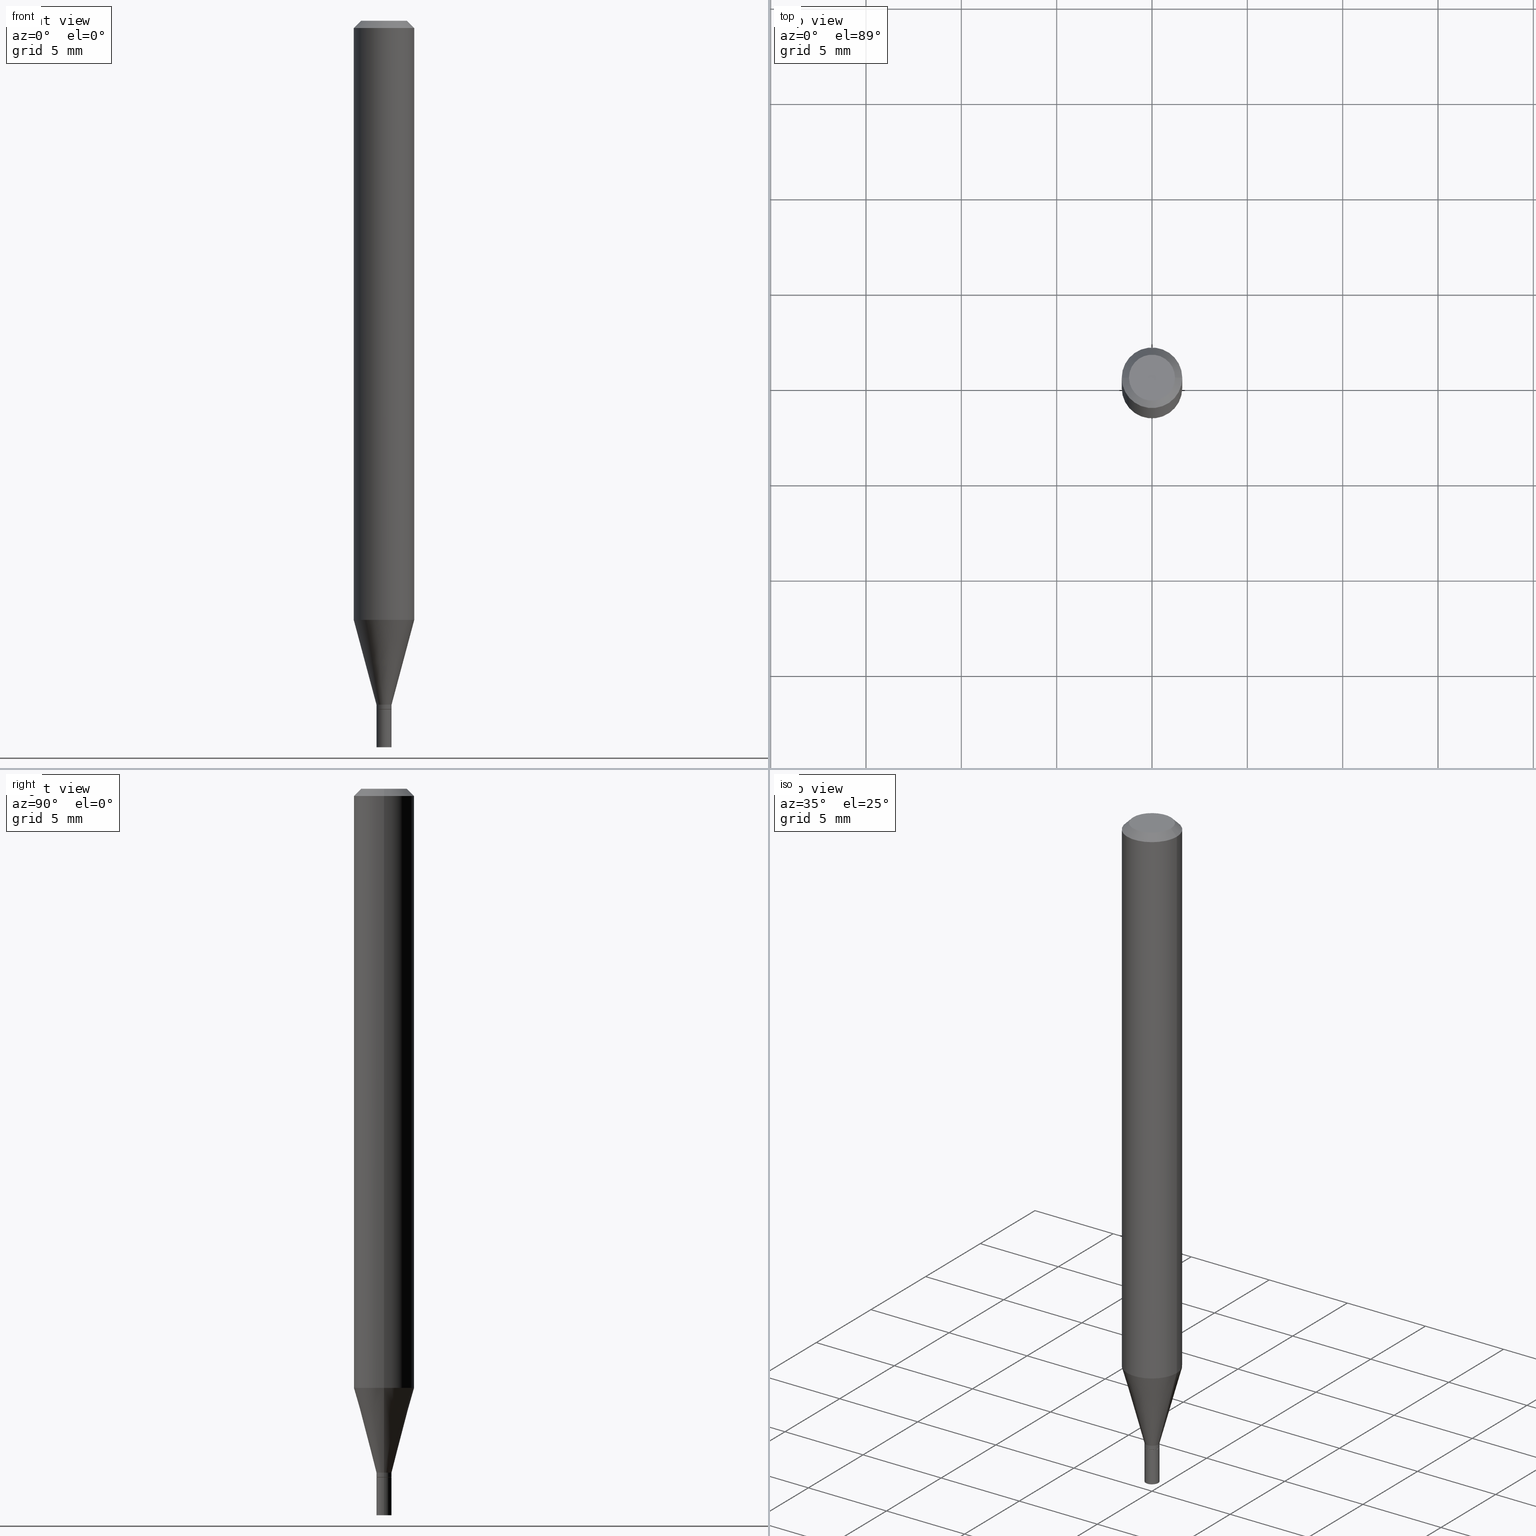
[diagram: canonical four-view strip — front | top / right | iso, engineering-drawing reading convention]
A machine part, canonical four-view strip (front | top / right | iso — engineering-drawing reading convention). The complete STEP part file that produces these views, byte-faithful:
ISO-10303-21;
HEADER;
FILE_DESCRIPTION (( 'STEP AP203' ),
    '1' );
FILE_NAME ('30812.STEP',
    '2024-03-13T16:22:15',
    ( '' ),
    ( '' ),
    'SwSTEP 2.0',
    'SolidWorks 2023',
    '' );
FILE_SCHEMA (( 'CONFIG_CONTROL_DESIGN' ));
ENDSEC;

DATA;
#1 = ORIENTED_EDGE ( 'NONE', *, *, #238, .T. ) ;
#2 = DIRECTION ( 'NONE',  ( 1.000000000000000000, 0.000000000000000000, 0.000000000000000000 ) ) ;
#3 = VECTOR ( 'NONE', #97, 39.37007874015748143 ) ;
#4 = CIRCLE ( 'NONE', #129, 0.06250000000000000000 ) ;
#5 = ORIENTED_EDGE ( 'NONE', *, *, #93, .F. ) ;
#6 = CARTESIAN_POINT ( 'NONE',  ( 3.316907271900976096E-16, 0.04749999999999999362, -2.357791577261395620E-17 ) ) ;
#7 = APPROVAL_STATUS ( 'not_yet_approved' ) ;
#8 = CARTESIAN_POINT ( 'NONE',  ( -0.01559999999999992816, -4.819126983667946462E-15, -1.412000000000000144 ) ) ;
#9 = CONICAL_SURFACE ( 'NONE', #56, 0.01559999999999992816, 0.2617993877991502405 ) ;
#10 = CONICAL_SURFACE ( 'NONE', #334, 0.06250000000000001388, 0.7853981633974395082 ) ;
#11 = FACE_OUTER_BOUND ( 'NONE', #323, .T. ) ;
#12 = DIRECTION ( 'NONE',  ( 1.000000000000000000, -6.982962677686252511E-15, 0.000000000000000000 ) ) ;
#13 = EDGE_CURVE ( 'NONE', #32, #143, #386, .T. ) ;
#14 = DIRECTION ( 'NONE',  ( 2.445468806185136597E-29, -3.491481338843145583E-15, -1.000000000000000000 ) ) ;
#15 = LINE ( 'NONE', #23, #383 ) ;
#16 = PERSON_AND_ORGANIZATION ( #141, #343 ) ;
#17 = CYLINDRICAL_SURFACE ( 'NONE', #153, 0.06250000000000001388 ) ;
#18 = AXIS2_PLACEMENT_3D ( 'NONE', #452, #55, #95 ) ;
#19 = CC_DESIGN_APPROVAL ( #340, ( #359 ) ) ;
#20 = EDGE_CURVE ( 'NONE', #464, #241, #170, .T. ) ;
#21 = DIRECTION ( 'NONE',  ( -1.000000000000000000, 6.982962677686267499E-15, 0.000000000000000000 ) ) ;
#22 = DESIGN_CONTEXT ( 'detailed design', #198, 'design' ) ;
#23 = CARTESIAN_POINT ( 'NONE',  ( -0.06250000000000001388, 3.840629472727445902E-16, -0.01499999999999999944 ) ) ;
#24 = DIRECTION ( 'NONE',  ( 1.000000000000000000, -6.982962677686250144E-15, 0.000000000000000000 ) ) ;
#25 = ADVANCED_FACE ( 'NONE', ( #360 ), #213, .T. ) ;
#26 = EDGE_CURVE ( 'NONE', #352, #32, #390, .T. ) ;
#27 = AXIS2_PLACEMENT_3D ( 'NONE', #336, #117, #186 ) ;
#28 = ORIENTED_EDGE ( 'NONE', *, *, #437, .F. ) ;
#29 = AXIS2_PLACEMENT_3D ( 'NONE', #137, #402, #183 ) ;
#30 = VERTEX_POINT ( 'NONE', #349 ) ;
#31 = DIRECTION ( 'NONE',  ( 0.7071067811865412445, -7.319954787623233957E-15, -0.7071067811865536790 ) ) ;
#32 = VERTEX_POINT ( 'NONE', #429 ) ;
#33 = ORIENTED_EDGE ( 'NONE', *, *, #93, .T. ) ;
#34 = CARTESIAN_POINT ( 'NONE',  ( 0.04749999999999999362, -4.035134999187574186E-16, 2.845348956448734443E-16 ) ) ;
#35 = FACE_OUTER_BOUND ( 'NONE', #244, .T. ) ;
#36 = ORIENTED_EDGE ( 'NONE', *, *, #165, .T. ) ;
#37 = AXIS2_PLACEMENT_3D ( 'NONE', #283, #200, #74 ) ;
#38 = CARTESIAN_POINT ( 'NONE',  ( 3.024963765565350895E-29, -4.318846558760209820E-15, -1.236966817125020102 ) ) ;
#39 = VERTEX_POINT ( 'NONE', #313 ) ;
#40 = ORIENTED_EDGE ( 'NONE', *, *, #453, .T. ) ;
#41 = PRODUCT ( '30812', '30812', '', ( #292 ) ) ;
#42 = DIRECTION ( 'NONE',  ( 0.000000000000000000, 0.000000000000000000, 1.000000000000000000 ) ) ;
#43 = ORIENTED_EDGE ( 'NONE', *, *, #96, .F. ) ;
#44 = CC_DESIGN_PERSON_AND_ORGANIZATION_ASSIGNMENT ( #161, #335, ( #243 ) ) ;
#45 = FACE_OUTER_BOUND ( 'NONE', #107, .T. ) ;
#46 = CIRCLE ( 'NONE', #163, 0.01559999999999992816 ) ;
#47 = ADVANCED_FACE ( 'NONE', ( #35 ), #423, .T. ) ;
#48 = LINE ( 'NONE', #254, #62 ) ;
#49 = COORDINATED_UNIVERSAL_TIME_OFFSET ( 5, 0, .BEHIND. ) ;
#50 = DIRECTION ( 'NONE',  ( -2.445468806185136877E-29, 3.491481338843145188E-15, 1.000000000000000000 ) ) ;
#51 = AXIS2_PLACEMENT_3D ( 'NONE', #221, #14, #21 ) ;
#52 = VECTOR ( 'NONE', #277, 39.37007874015748143 ) ;
#53 = DIRECTION ( 'NONE',  ( 0.7071067811865642261, -2.468850131082431399E-15, 0.7071067811865309194 ) ) ;
#54 = PERSON_AND_ORGANIZATION ( #141, #343 ) ;
#55 = DIRECTION ( 'NONE',  ( -2.445468806185136597E-29, 3.491481338843145583E-15, 1.000000000000000000 ) ) ;
#56 = AXIS2_PLACEMENT_3D ( 'NONE', #83, #215, #12 ) ;
#57 = CC_DESIGN_APPROVAL ( #218, ( #435 ) ) ;
#58 = VERTEX_POINT ( 'NONE', #204 ) ;
#59 = ADVANCED_BREP_SHAPE_REPRESENTATION ( '30812', ( #279, #278, #398 ), #118 ) ;
#60 = DIRECTION ( 'NONE',  ( -2.445468806185136597E-29, 3.491481338843145583E-15, 1.000000000000000000 ) ) ;
#61 = VECTOR ( 'NONE', #306, 39.37007874015748143 ) ;
#62 = VECTOR ( 'NONE', #151, 39.37007874015748143 ) ;
#63 = DIRECTION ( 'NONE',  ( -0.7071067811865642261, 7.493145998870414114E-15, 0.7071067811865309194 ) ) ;
#64 = VERTEX_POINT ( 'NONE', #136 ) ;
#65 = DIRECTION ( 'NONE',  ( -2.438088387897960049E-29, 3.491481338843145188E-15, 1.000000000000000000 ) ) ;
#66 = ORIENTED_EDGE ( 'NONE', *, *, #263, .F. ) ;
#67 = DIRECTION ( 'NONE',  ( 1.000000000000000000, -6.982962677686252511E-15, 0.000000000000000000 ) ) ;
#68 = ORIENTED_EDGE ( 'NONE', *, *, #320, .F. ) ;
#69 = CLOSED_SHELL ( 'NONE', ( #308, #76, #216, #407 ) ) ;
#70 = AXIS2_PLACEMENT_3D ( 'NONE', #344, #232, #302 ) ;
#71 = CARTESIAN_POINT ( 'NONE',  ( -0.01509999999999999884, -4.854945283561067019E-15, -1.421999999999999931 ) ) ;
#72 = AXIS2_PLACEMENT_3D ( 'NONE', #397, #353, #364 ) ;
#73 = DIMENSIONAL_EXPONENTS ( 1.000000000000000000, 0.000000000000000000, 0.000000000000000000, 0.000000000000000000, 0.000000000000000000, 0.000000000000000000, 0.000000000000000000 ) ;
#74 = DIRECTION ( 'NONE',  ( 1.000000000000000000, -6.982962677686255667E-15, 0.000000000000000000 ) ) ;
#75 = ORIENTED_EDGE ( 'NONE', *, *, #265, .T. ) ;
#76 = ADVANCED_FACE ( 'NONE', ( #208 ), #276, .F. ) ;
#77 = DIRECTION ( 'NONE',  ( -2.445468806185136597E-29, 3.491481338843145583E-15, 1.000000000000000000 ) ) ;
#78 = CARTESIAN_POINT ( 'NONE',  ( 3.024963765565350895E-29, -4.318846558760209820E-15, -1.236966817125020102 ) ) ;
#79 = DIRECTION ( 'NONE',  ( 1.000000000000000000, -6.982962677686267499E-15, 0.000000000000000000 ) ) ;
#80 = AXIS2_PLACEMENT_3D ( 'NONE', #176, #321, #270 ) ;
#81 = CC_DESIGN_SECURITY_CLASSIFICATION ( #435, ( #243 ) ) ;
#82 = DIRECTION ( 'NONE',  ( 1.000000000000000000, -6.982962677686283277E-15, 0.000000000000000000 ) ) ;
#83 = CARTESIAN_POINT ( 'NONE',  ( 3.453001954333413314E-29, -4.929971650446521716E-15, -1.412000000000000144 ) ) ;
#84 = ADVANCED_FACE ( 'NONE', ( #202 ), #351, .T. ) ;
#85 = FACE_OUTER_BOUND ( 'NONE', #462, .T. ) ;
#86 = PERSON_AND_ORGANIZATION_ROLE ( 'design_owner' ) ;
#87 = LINE ( 'NONE', #98, #434 ) ;
#88 = AXIS2_PLACEMENT_3D ( 'NONE', #172, #461, #458 ) ;
#89 = CARTESIAN_POINT ( 'NONE',  ( -0.06250000000000001388, 4.440892098500627148E-16, -3.074334431409316814E-30 ) ) ;
#90 = CARTESIAN_POINT ( 'NONE',  ( 0.01509999999999999884, -5.070329200268016125E-15, -1.421999999999999931 ) ) ;
#91 = CARTESIAN_POINT ( 'NONE',  ( 0.01559999999999992122, -5.072074940937436839E-15, -1.421500000000000208 ) ) ;
#92 = LINE ( 'NONE', #226, #61 ) ;
#93 = EDGE_CURVE ( 'NONE', #30, #352, #227, .T. ) ;
#94 = CIRCLE ( 'NONE', #317, 0.01509999999999999884 ) ;
#95 = DIRECTION ( 'NONE',  ( 1.000000000000000000, -6.982962677686265922E-15, 4.876176775795935232E-29 ) ) ;
#96 = EDGE_CURVE ( 'NONE', #104, #39, #420, .T. ) ;
#97 = DIRECTION ( 'NONE',  ( -2.445468806185136877E-29, 3.491481338843145188E-15, 1.000000000000000000 ) ) ;
#98 = CARTESIAN_POINT ( 'NONE',  ( 0.06250000000000001388, -4.364351673553917187E-16, 3.047610484872460221E-30 ) ) ;
#99 = CIRCLE ( 'NONE', #27, 0.04749999999999999362 ) ;
#100 = EDGE_LOOP ( 'NONE', ( #293, #175, #427, #436 ) ) ;
#101 = ORIENTED_EDGE ( 'NONE', *, *, #315, .T. ) ;
#102 = ORIENTED_EDGE ( 'NONE', *, *, #315, .F. ) ;
#103 = DIRECTION ( 'NONE',  ( 1.000000000000000000, -6.982962677686283277E-15, 0.000000000000000000 ) ) ;
#104 = VERTEX_POINT ( 'NONE', #225 ) ;
#105 = DIRECTION ( 'NONE',  ( -2.445468806185136597E-29, 3.491481338843145583E-15, 1.000000000000000000 ) ) ;
#106 = DIRECTION ( 'NONE',  ( 2.445468806185136597E-29, -3.491481338843145583E-15, -1.000000000000000000 ) ) ;
#107 = EDGE_LOOP ( 'NONE', ( #421, #75 ) ) ;
#108 = AXIS2_PLACEMENT_3D ( 'NONE', #231, #422, #195 ) ;
#109 = APPROVAL_PERSON_ORGANIZATION ( #418, #124, #414 ) ;
#110 = DIRECTION ( 'NONE',  ( 1.000000000000000000, -6.982962677686262766E-15, 0.000000000000000000 ) ) ;
#111 = EDGE_LOOP ( 'NONE', ( #451, #361, #394, #325 ) ) ;
#112 = APPLICATION_CONTEXT ( 'configuration controlled 3d designs of mechanical parts and assemblies' ) ;
#113 = ORIENTED_EDGE ( 'NONE', *, *, #169, .T. ) ;
#114 = DIRECTION ( 'NONE',  ( -2.445468806185136597E-29, 3.491481338843145583E-15, 1.000000000000000000 ) ) ;
#115 = DIRECTION ( 'NONE',  ( -2.438088387897960049E-29, 3.491481338843145188E-15, 1.000000000000000000 ) ) ;
#116 = FACE_OUTER_BOUND ( 'NONE', #399, .T. ) ;
#117 = DIRECTION ( 'NONE',  ( -2.445468806185136597E-29, 3.491481338843145583E-15, 1.000000000000000000 ) ) ;
#118 =( GEOMETRIC_REPRESENTATION_CONTEXT ( 3 ) GLOBAL_UNCERTAINTY_ASSIGNED_CONTEXT ( ( #403 ) ) GLOBAL_UNIT_ASSIGNED_CONTEXT ( ( #392, #285, #362 ) ) REPRESENTATION_CONTEXT ( 'NONE', 'WORKASPACE' ) );
#119 = EDGE_CURVE ( 'NONE', #464, #209, #455, .T. ) ;
#120 = CYLINDRICAL_SURFACE ( 'NONE', #29, 0.01559999999999992643 ) ;
#121 = PERSON_AND_ORGANIZATION ( #141, #343 ) ;
#122 = CARTESIAN_POINT ( 'NONE',  ( 3.477456642395264859E-29, -4.964886463834953365E-15, -1.421999999999999931 ) ) ;
#123 = ADVANCED_FACE ( 'NONE', ( #223 ), #454, .T. ) ;
#124 = APPROVAL ( #378, 'UNSPECIFIED' ) ;
#125 = DATE_AND_TIME ( #447, #234 ) ;
#126 = DIRECTION ( 'NONE',  ( -2.445468806185136597E-29, 3.491481338843145583E-15, 1.000000000000000000 ) ) ;
#127 = VERTEX_POINT ( 'NONE', #274 ) ;
#128 = ADVANCED_FACE ( 'NONE', ( #338 ), #354, .T. ) ;
#129 = AXIS2_PLACEMENT_3D ( 'NONE', #38, #256, #110 ) ;
#130 = ORIENTED_EDGE ( 'NONE', *, *, #119, .T. ) ;
#131 = CARTESIAN_POINT ( 'NONE',  ( 3.453001954333413314E-29, -4.929971650446521716E-15, -1.412000000000000144 ) ) ;
#132 = DIRECTION ( 'NONE',  ( 1.000000000000000000, -6.982962677686250144E-15, 0.000000000000000000 ) ) ;
#133 = VECTOR ( 'NONE', #443, 39.37007874015748143 ) ;
#134 = ORIENTED_EDGE ( 'NONE', *, *, #357, .F. ) ;
#135 = FACE_OUTER_BOUND ( 'NONE', #430, .T. ) ;
#136 = CARTESIAN_POINT ( 'NONE',  ( -0.01559999999999999928, -4.990209569271260911E-15, -1.500000000000000222 ) ) ;
#137 = CARTESIAN_POINT ( 'NONE',  ( 0.000000000000000000, 0.000000000000000000, 0.000000000000000000 ) ) ;
#138 = ORIENTED_EDGE ( 'NONE', *, *, #158, .T. ) ;
#139 = VERTEX_POINT ( 'NONE', #448 ) ;
#140 = ORIENTED_EDGE ( 'NONE', *, *, #337, .T. ) ;
#141 = PERSON ( 'UNSPECIFIED', 'UNSPECIFIED', 'UNSPECIFIED', ('UNSPECIFIED'), ('UNSPECIFIED'), ('UNSPECIFIED') ) ;
#142 = ORIENTED_EDGE ( 'NONE', *, *, #197, .F. ) ;
#143 = VERTEX_POINT ( 'NONE', #91 ) ;
#144 = CARTESIAN_POINT ( 'NONE',  ( 0.000000000000000000, 0.000000000000000000, 0.000000000000000000 ) ) ;
#145 = ORIENTED_EDGE ( 'NONE', *, *, #158, .F. ) ;
#146 = AXIS2_PLACEMENT_3D ( 'NONE', #367, #409, #82 ) ;
#147 = LOCAL_TIME ( 12, 22, 15.00000000000000000, #159 ) ;
#148 = APPLICATION_PROTOCOL_DEFINITION ( 'international standard', 'config_control_design', 1994, #112 ) ;
#149 = ORIENTED_EDGE ( 'NONE', *, *, #439, .T. ) ;
#150 = DIRECTION ( 'NONE',  ( 1.000000000000000000, -6.982962677686250144E-15, 0.000000000000000000 ) ) ;
#151 = DIRECTION ( 'NONE',  ( -2.445468806185136877E-29, 3.491481338843145188E-15, 1.000000000000000000 ) ) ;
#152 = DATE_AND_TIME ( #368, #147 ) ;
#153 = AXIS2_PLACEMENT_3D ( 'NONE', #162, #126, #224 ) ;
#154 = LINE ( 'NONE', #8, #133 ) ;
#155 = AXIS2_PLACEMENT_3D ( 'NONE', #6, #211, #294 ) ;
#156 = APPROVAL_ROLE ( '' ) ;
#157 = LINE ( 'NONE', #446, #365 ) ;
#158 = EDGE_CURVE ( 'NONE', #143, #104, #92, .T. ) ;
#159 = COORDINATED_UNIVERSAL_TIME_OFFSET ( 5, 0, .BEHIND. ) ;
#160 = CARTESIAN_POINT ( 'NONE',  ( 3.668203209277704895E-29, -5.237222008264718177E-15, -1.500000000000000222 ) ) ;
#161 = PERSON_AND_ORGANIZATION ( #141, #343 ) ;
#162 = CARTESIAN_POINT ( 'NONE',  ( 0.000000000000000000, 0.000000000000000000, 0.000000000000000000 ) ) ;
#163 = AXIS2_PLACEMENT_3D ( 'NONE', #261, #297, #380 ) ;
#164 = CIRCLE ( 'NONE', #272, 0.01559999999999999928 ) ;
#165 = EDGE_CURVE ( 'NONE', #352, #30, #94, .T. ) ;
#166 = VECTOR ( 'NONE', #275, 39.37007874015748143 ) ;
#167 = AXIS2_PLACEMENT_3D ( 'NONE', #431, #441, #324 ) ;
#168 = ORIENTED_EDGE ( 'NONE', *, *, #238, .F. ) ;
#169 = EDGE_CURVE ( 'NONE', #319, #64, #309, .T. ) ;
#170 = LINE ( 'NONE', #457, #425 ) ;
#171 = ORIENTED_EDGE ( 'NONE', *, *, #320, .T. ) ;
#172 = CARTESIAN_POINT ( 'NONE',  ( 0.000000000000000000, 0.000000000000000000, 0.000000000000000000 ) ) ;
#173 = CLOSED_SHELL ( 'NONE', ( #123, #25, #310, #84, #47, #248, #179, #128, #376, #255, #405, #339 ) ) ;
#174 = DIRECTION ( 'NONE',  ( -2.445468806185136597E-29, 3.491481338843145583E-15, 1.000000000000000000 ) ) ;
#175 = ORIENTED_EDGE ( 'NONE', *, *, #303, .T. ) ;
#176 = CARTESIAN_POINT ( 'NONE',  ( 3.477456642395264859E-29, -4.964886463834953365E-15, -1.421999999999999931 ) ) ;
#177 = ORIENTED_EDGE ( 'NONE', *, *, #395, .F. ) ;
#178 = CARTESIAN_POINT ( 'NONE',  ( 3.477456642395264859E-29, -4.964886463834953365E-15, -1.421999999999999931 ) ) ;
#179 = ADVANCED_FACE ( 'NONE', ( #342 ), #17, .T. ) ;
#180 = EDGE_LOOP ( 'NONE', ( #236, #177 ) ) ;
#181 = ORIENTED_EDGE ( 'NONE', *, *, #20, .F. ) ;
#182 = LOCAL_TIME ( 12, 22, 15.00000000000000000, #369 ) ;
#183 = DIRECTION ( 'NONE',  ( 1.000000000000000000, -6.982962677686265922E-15, 4.876176775795935232E-29 ) ) ;
#184 = DIRECTION ( 'NONE',  ( 1.000000000000000000, -6.982962677686262766E-15, 0.000000000000000000 ) ) ;
#185 = APPROVAL_DATE_TIME ( #222, #340 ) ;
#186 = DIRECTION ( 'NONE',  ( 1.000000000000000000, -6.982962677686267499E-15, 4.852736867747366768E-29 ) ) ;
#187 = PERSON_AND_ORGANIZATION ( #141, #343 ) ;
#188 = AXIS2_PLACEMENT_3D ( 'NONE', #388, #65, #355 ) ;
#189 = APPROVAL_PERSON_ORGANIZATION ( #16, #340, #372 ) ;
#190 = CC_DESIGN_PERSON_AND_ORGANIZATION_ASSIGNMENT ( #54, #194, ( #359 ) ) ;
#191 = LINE ( 'NONE', #90, #366 ) ;
#192 = APPLICATION_PROTOCOL_DEFINITION ( 'international standard', 'config_control_design', 1994, #198 ) ;
#193 = DIRECTION ( 'NONE',  ( -2.445468806185136877E-29, 3.491481338843145188E-15, 1.000000000000000000 ) ) ;
#194 = PERSON_AND_ORGANIZATION_ROLE ( 'creator' ) ;
#195 = DIRECTION ( 'NONE',  ( 1.000000000000000000, -6.982962677686267499E-15, 4.852736867747366768E-29 ) ) ;
#196 = AXIS2_PLACEMENT_3D ( 'NONE', #300, #410, #370 ) ;
#197 = EDGE_CURVE ( 'NONE', #319, #205, #381, .T. ) ;
#198 = APPLICATION_CONTEXT ( 'configuration controlled 3d designs of mechanical parts and assemblies' ) ;
#199 = ORIENTED_EDGE ( 'NONE', *, *, #13, .F. ) ;
#200 = DIRECTION ( 'NONE',  ( -2.445468806185136597E-29, 3.491481338843145583E-15, 1.000000000000000000 ) ) ;
#201 = VERTEX_POINT ( 'NONE', #230 ) ;
#202 = FACE_OUTER_BOUND ( 'NONE', #350, .T. ) ;
#203 = ORIENTED_EDGE ( 'NONE', *, *, #263, .T. ) ;
#204 = CARTESIAN_POINT ( 'NONE',  ( -0.06250000000000002776, -1.741520179571366031E-15, -0.01499999999999999944 ) ) ;
#205 = VERTEX_POINT ( 'NONE', #385 ) ;
#206 = CIRCLE ( 'NONE', #298, 0.01559999999999992816 ) ;
#207 = FACE_OUTER_BOUND ( 'NONE', #291, .T. ) ;
#208 = FACE_OUTER_BOUND ( 'NONE', #180, .T. ) ;
#209 = VERTEX_POINT ( 'NONE', #466 ) ;
#210 = ORIENTED_EDGE ( 'NONE', *, *, #26, .T. ) ;
#211 = DIRECTION ( 'NONE',  ( 2.438088387897960049E-29, -3.491481338843145188E-15, -1.000000000000000000 ) ) ;
#212 = LINE ( 'NONE', #89, #52 ) ;
#213 = CONICAL_SURFACE ( 'NONE', #444, 0.01509999999999999884, 0.7853981633974718157 ) ;
#214 = APPROVAL_STATUS ( 'not_yet_approved' ) ;
#215 = DIRECTION ( 'NONE',  ( -2.445468806185136597E-29, 3.491481338843145583E-15, 1.000000000000000000 ) ) ;
#216 = ADVANCED_FACE ( 'NONE', ( #289 ), #412, .T. ) ;
#217 = PERSON_AND_ORGANIZATION_ROLE ( 'design_supplier' ) ;
#218 = APPROVAL ( #7, 'UNSPECIFIED' ) ;
#219 = DATE_TIME_ROLE ( 'creation_date' ) ;
#220 = APPROVAL_PERSON_ORGANIZATION ( #268, #218, #156 ) ;
#221 = CARTESIAN_POINT ( 'NONE',  ( 3.668203209277705088E-31, -5.237222008264718399E-17, -0.01499999999999999944 ) ) ;
#222 = DATE_AND_TIME ( #259, #456 ) ;
#223 = FACE_OUTER_BOUND ( 'NONE', #322, .T. ) ;
#224 = DIRECTION ( 'NONE',  ( 1.000000000000000000, -6.982962677686265922E-15, 4.876176775795935232E-29 ) ) ;
#225 = CARTESIAN_POINT ( 'NONE',  ( 0.01559999999999992816, -5.038905868218426694E-15, -1.412000000000000144 ) ) ;
#226 = CARTESIAN_POINT ( 'NONE',  ( 0.01559999999999992643, -1.089342177719052370E-16, 7.606835770241623291E-31 ) ) ;
#227 = CIRCLE ( 'NONE', #80, 0.01509999999999999884 ) ;
#228 = ORIENTED_EDGE ( 'NONE', *, *, #332, .F. ) ;
#229 = EDGE_CURVE ( 'NONE', #39, #241, #87, .T. ) ;
#230 = CARTESIAN_POINT ( 'NONE',  ( -0.06250000000000000000, -3.874757348910146415E-15, -1.236966817125020102 ) ) ;
#231 = CARTESIAN_POINT ( 'NONE',  ( -6.958212115706747638E-45, 9.934482783937485755E-31, 2.845348956448708805E-16 ) ) ;
#232 = DIRECTION ( 'NONE',  ( -2.445468806185136597E-29, 3.491481338843145583E-15, 1.000000000000000000 ) ) ;
#233 = CIRCLE ( 'NONE', #70, 0.01559999999999992122 ) ;
#234 = LOCAL_TIME ( 12, 22, 15.00000000000000000, #442 ) ;
#235 = CARTESIAN_POINT ( 'NONE',  ( 3.477456642395264859E-29, -4.964886463834953365E-15, -1.421999999999999931 ) ) ;
#236 = ORIENTED_EDGE ( 'NONE', *, *, #169, .F. ) ;
#237 = LENGTH_MEASURE_WITH_UNIT ( LENGTH_MEASURE( 0.02539999999999999897 ), #245 );
#238 = EDGE_CURVE ( 'NONE', #209, #464, #99, .T. ) ;
#239 = ORIENTED_EDGE ( 'NONE', *, *, #411, .F. ) ;
#240 = ORIENTED_EDGE ( 'NONE', *, *, #249, .T. ) ;
#241 = VERTEX_POINT ( 'NONE', #296 ) ;
#242 = DIRECTION ( 'NONE',  ( -1.000000000000000000, 6.982962677686267499E-15, 0.000000000000000000 ) ) ;
#243 = PRODUCT_DEFINITION_FORMATION_WITH_SPECIFIED_SOURCE ( 'ANY', '', #41, .NOT_KNOWN. ) ;
#244 = EDGE_LOOP ( 'NONE', ( #389, #363, #28, #43 ) ) ;
#245 =( LENGTH_UNIT ( ) NAMED_UNIT ( * ) SI_UNIT ( $, .METRE. ) );
#246 = EDGE_CURVE ( 'NONE', #127, #201, #154, .T. ) ;
#247 = ORIENTED_EDGE ( 'NONE', *, *, #246, .F. ) ;
#248 = ADVANCED_FACE ( 'NONE', ( #413 ), #9, .T. ) ;
#249 = EDGE_CURVE ( 'NONE', #64, #139, #157, .T. ) ;
#250 = PERSON_AND_ORGANIZATION ( #141, #343 ) ;
#251 = CC_DESIGN_DATE_AND_TIME_ASSIGNMENT ( #305, #331, ( #435 ) ) ;
#252 = EDGE_LOOP ( 'NONE', ( #5, #391 ) ) ;
#253 = DIRECTION ( 'NONE',  ( 1.000000000000000000, -6.982962677686265922E-15, 4.876176775795935793E-29 ) ) ;
#254 = CARTESIAN_POINT ( 'NONE',  ( -0.01559999999999992643, 1.108446667785751062E-16, -7.673538740797616580E-31 ) ) ;
#255 = ADVANCED_FACE ( 'NONE', ( #371 ), #301, .F. ) ;
#256 = DIRECTION ( 'NONE',  ( -2.445468806185136597E-29, 3.491481338843145583E-15, 1.000000000000000000 ) ) ;
#257 = CYLINDRICAL_SURFACE ( 'NONE', #449, 0.01559999999999999928 ) ;
#258 = AXIS2_PLACEMENT_3D ( 'NONE', #160, #269, #379 ) ;
#259 = CALENDAR_DATE ( 2024, 13, 3 ) ;
#260 = CARTESIAN_POINT ( 'NONE',  ( 3.668203209277705088E-31, -5.237222008264718399E-17, -0.01499999999999999944 ) ) ;
#261 = CARTESIAN_POINT ( 'NONE',  ( 3.453001954333413314E-29, -4.929971650446521716E-15, -1.412000000000000144 ) ) ;
#262 = DIRECTION ( 'NONE',  ( 1.000000000000000000, -6.982962677686266711E-15, 4.876176775795935793E-29 ) ) ;
#263 = EDGE_CURVE ( 'NONE', #127, #104, #46, .T. ) ;
#264 = CARTESIAN_POINT ( 'NONE',  ( 0.000000000000000000, 0.000000000000000000, 0.000000000000000000 ) ) ;
#265 = EDGE_CURVE ( 'NONE', #139, #205, #408, .T. ) ;
#266 = CIRCLE ( 'NONE', #328, 0.06250000000000000000 ) ;
#267 = COORDINATED_UNIVERSAL_TIME_OFFSET ( 5, 0, .BEHIND. ) ;
#268 = PERSON_AND_ORGANIZATION ( #141, #343 ) ;
#269 = DIRECTION ( 'NONE',  ( -2.445468806185136597E-29, 3.491481338843145583E-15, 1.000000000000000000 ) ) ;
#270 = DIRECTION ( 'NONE',  ( 1.000000000000000000, -6.982962677686250144E-15, 0.000000000000000000 ) ) ;
#271 = AXIS2_PLACEMENT_3D ( 'NONE', #282, #174, #460 ) ;
#272 = AXIS2_PLACEMENT_3D ( 'NONE', #316, #288, #103 ) ;
#273 = CC_DESIGN_PERSON_AND_ORGANIZATION_ASSIGNMENT ( #250, #86, ( #41 ) ) ;
#274 = CARTESIAN_POINT ( 'NONE',  ( -0.01559999999999992816, -4.346942166289046833E-15, -1.412000000000000144 ) ) ;
#275 = DIRECTION ( 'NONE',  ( 0.2588190451025215166, 1.565188264969620784E-15, 0.9659258262890679791 ) ) ;
#276 = PLANE ( 'NONE',  #188 ) ;
#277 = DIRECTION ( 'NONE',  ( -2.445468806185136877E-29, 3.491481338843145188E-15, 1.000000000000000000 ) ) ;
#278 = MANIFOLD_SOLID_BREP ( 'Body-Move/Copy2[2]', #173 ) ;
#279 = MANIFOLD_SOLID_BREP ( 'Body-Move/Copy2[1]', #69 ) ;
#280 = CONICAL_SURFACE ( 'NONE', #426, 0.01509999999999999884, 0.7853981633974718157 ) ;
#281 = ORIENTED_EDGE ( 'NONE', *, *, #96, .T. ) ;
#282 = CARTESIAN_POINT ( 'NONE',  ( 3.668203209277705088E-31, -5.237222008264718399E-17, -0.01499999999999999944 ) ) ;
#283 = CARTESIAN_POINT ( 'NONE',  ( 3.476233907992172058E-29, -4.963140723165531861E-15, -1.421500000000000208 ) ) ;
#284 = ORIENTED_EDGE ( 'NONE', *, *, #312, .T. ) ;
#285 =( NAMED_UNIT ( * ) PLANE_ANGLE_UNIT ( ) SI_UNIT ( $, .RADIAN. ) );
#286 = DIRECTION ( 'NONE',  ( -2.445468806185136597E-29, 3.491481338843145583E-15, 1.000000000000000000 ) ) ;
#287 = ORIENTED_EDGE ( 'NONE', *, *, #303, .F. ) ;
#288 = DIRECTION ( 'NONE',  ( -2.445468806185136597E-29, 3.491481338843145583E-15, 1.000000000000000000 ) ) ;
#289 = FACE_OUTER_BOUND ( 'NONE', #111, .T. ) ;
#290 = CIRCLE ( 'NONE', #271, 0.06250000000000001388 ) ;
#291 = EDGE_LOOP ( 'NONE', ( #438, #36, #400, #199 ) ) ;
#292 = MECHANICAL_CONTEXT ( 'NONE', #112, 'mechanical' ) ;
#293 = ORIENTED_EDGE ( 'NONE', *, *, #337, .F. ) ;
#294 = DIRECTION ( 'NONE',  ( -1.000000000000000000, 6.982962677686265922E-15, -4.876176775795935793E-29 ) ) ;
#295 = SHAPE_DEFINITION_REPRESENTATION ( #404, #59 ) ;
#296 = CARTESIAN_POINT ( 'NONE',  ( 0.06250000000000001388, -4.888073874380389458E-16, -0.01499999999999999944 ) ) ;
#297 = DIRECTION ( 'NONE',  ( -2.445468806185136597E-29, 3.491481338843145583E-15, 1.000000000000000000 ) ) ;
#298 = AXIS2_PLACEMENT_3D ( 'NONE', #327, #114, #465 ) ;
#299 = APPROVAL_DATE_TIME ( #125, #218 ) ;
#300 = CARTESIAN_POINT ( 'NONE',  ( 0.000000000000000000, 0.000000000000000000, 0.000000000000000000 ) ) ;
#301 = PLANE ( 'NONE',  #347 ) ;
#302 = DIRECTION ( 'NONE',  ( 1.000000000000000000, -6.982962677686255667E-15, 0.000000000000000000 ) ) ;
#303 = EDGE_CURVE ( 'NONE', #201, #39, #266, .T. ) ;
#304 = VECTOR ( 'NONE', #63, 39.37007874015748143 ) ;
#305 = DATE_AND_TIME ( #333, #182 ) ;
#306 = DIRECTION ( 'NONE',  ( -2.445468806185136877E-29, 3.491481338843145188E-15, 1.000000000000000000 ) ) ;
#307 = EDGE_LOOP ( 'NONE', ( #33, #210, #382, #228 ) ) ;
#308 = ADVANCED_FACE ( 'NONE', ( #11 ), #257, .T. ) ;
#309 = CIRCLE ( 'NONE', #258, 0.01559999999999999928 ) ;
#310 = ADVANCED_FACE ( 'NONE', ( #85 ), #10, .T. ) ;
#311 = CIRCLE ( 'NONE', #72, 0.01559999999999999928 ) ;
#312 = EDGE_CURVE ( 'NONE', #143, #32, #233, .T. ) ;
#313 = CARTESIAN_POINT ( 'NONE',  ( 0.06250000000000000000, -4.755281726115601490E-15, -1.236966817125020102 ) ) ;
#314 = ORIENTED_EDGE ( 'NONE', *, *, #437, .T. ) ;
#315 = EDGE_CURVE ( 'NONE', #209, #58, #15, .T. ) ;
#316 = CARTESIAN_POINT ( 'NONE',  ( 3.477456642395264859E-29, -4.964886463834953365E-15, -1.421999999999999931 ) ) ;
#317 = AXIS2_PLACEMENT_3D ( 'NONE', #384, #60, #24 ) ;
#318 = AXIS2_PLACEMENT_3D ( 'NONE', #406, #77, #79 ) ;
#319 = VERTEX_POINT ( 'NONE', #440 ) ;
#320 = EDGE_CURVE ( 'NONE', #32, #127, #48, .T. ) ;
#321 = DIRECTION ( 'NONE',  ( -2.445468806185136597E-29, 3.491481338843145583E-15, 1.000000000000000000 ) ) ;
#322 = EDGE_LOOP ( 'NONE', ( #284, #171, #239, #145 ) ) ;
#323 = EDGE_LOOP ( 'NONE', ( #113, #240, #134, #142 ) ) ;
#324 = DIRECTION ( 'NONE',  ( -1.000000000000000000, 6.982962677686265922E-15, -4.876176775795935793E-29 ) ) ;
#325 = ORIENTED_EDGE ( 'NONE', *, *, #265, .F. ) ;
#326 = PRODUCT_RELATED_PRODUCT_CATEGORY ( 'detail', '', ( #41 ) ) ;
#327 = CARTESIAN_POINT ( 'NONE',  ( 3.453001954333413314E-29, -4.929971650446521716E-15, -1.412000000000000144 ) ) ;
#328 = AXIS2_PLACEMENT_3D ( 'NONE', #78, #415, #184 ) ;
#329 = LOCAL_TIME ( 12, 22, 15.00000000000000000, #49 ) ;
#330 = PLANE ( 'NONE',  #167 ) ;
#331 = DATE_TIME_ROLE ( 'classification_date' ) ;
#332 = EDGE_CURVE ( 'NONE', #30, #143, #191, .T. ) ;
#333 = CALENDAR_DATE ( 2024, 13, 3 ) ;
#334 = AXIS2_PLACEMENT_3D ( 'NONE', #260, #106, #242 ) ;
#335 = PERSON_AND_ORGANIZATION_ROLE ( 'creator' ) ;
#336 = CARTESIAN_POINT ( 'NONE',  ( -6.958212115706747638E-45, 9.934482783937485755E-31, 2.845348956448708805E-16 ) ) ;
#337 = EDGE_CURVE ( 'NONE', #201, #58, #212, .T. ) ;
#338 = FACE_OUTER_BOUND ( 'NONE', #428, .T. ) ;
#339 = ADVANCED_FACE ( 'NONE', ( #116 ), #120, .T. ) ;
#340 = APPROVAL ( #214, 'UNSPECIFIED' ) ;
#341 = DATE_AND_TIME ( #375, #329 ) ;
#342 = FACE_OUTER_BOUND ( 'NONE', #100, .T. ) ;
#343 = ORGANIZATION ( 'UNSPECIFIED', 'UNSPECIFIED', '' ) ;
#344 = CARTESIAN_POINT ( 'NONE',  ( 3.476233907992172058E-29, -4.963140723165531861E-15, -1.421500000000000208 ) ) ;
#345 = DIRECTION ( 'NONE',  ( -0.7071067811865412445, 2.468850131082191585E-15, -0.7071067811865536790 ) ) ;
#346 = CARTESIAN_POINT ( 'NONE',  ( 0.01559999999999992816, -5.038905868218426694E-15, -1.412000000000000144 ) ) ;
#347 = AXIS2_PLACEMENT_3D ( 'NONE', #122, #115, #253 ) ;
#348 = CARTESIAN_POINT ( 'NONE',  ( 0.01559999999999999928, -1.089342177719057547E-16, 7.606835770241659199E-31 ) ) ;
#349 = CARTESIAN_POINT ( 'NONE',  ( 0.01509999999999999884, -5.070329200268016125E-15, -1.421999999999999931 ) ) ;
#350 = EDGE_LOOP ( 'NONE', ( #314, #140, #432, #401 ) ) ;
#351 = CYLINDRICAL_SURFACE ( 'NONE', #88, 0.06250000000000001388 ) ;
#352 = VERTEX_POINT ( 'NONE', #71 ) ;
#353 = DIRECTION ( 'NONE',  ( -2.445468806185136597E-29, 3.491481338843145583E-15, 1.000000000000000000 ) ) ;
#354 = CONICAL_SURFACE ( 'NONE', #51, 0.06250000000000001388, 0.7853981633974395082 ) ;
#355 = DIRECTION ( 'NONE',  ( 1.000000000000000000, -6.982962677686265922E-15, 4.876176775795935793E-29 ) ) ;
#356 = ORIENTED_EDGE ( 'NONE', *, *, #20, .T. ) ;
#357 = EDGE_CURVE ( 'NONE', #205, #139, #164, .T. ) ;
#358 = DIRECTION ( 'NONE',  ( -2.445468806185136597E-29, 3.491481338843145583E-15, 1.000000000000000000 ) ) ;
#359 = PRODUCT_DEFINITION ( 'UNKNOWN', '', #243, #22 ) ;
#360 = FACE_OUTER_BOUND ( 'NONE', #307, .T. ) ;
#361 = ORIENTED_EDGE ( 'NONE', *, *, #395, .T. ) ;
#362 =( NAMED_UNIT ( * ) SI_UNIT ( $, .STERADIAN. ) SOLID_ANGLE_UNIT ( ) );
#363 = ORIENTED_EDGE ( 'NONE', *, *, #246, .T. ) ;
#364 = DIRECTION ( 'NONE',  ( 1.000000000000000000, -6.982962677686283277E-15, 0.000000000000000000 ) ) ;
#365 = VECTOR ( 'NONE', #50, 39.37007874015748143 ) ;
#366 = VECTOR ( 'NONE', #53, 39.37007874015748143 ) ;
#367 = CARTESIAN_POINT ( 'NONE',  ( 3.477456642395264859E-29, -4.964886463834953365E-15, -1.421999999999999931 ) ) ;
#368 = CALENDAR_DATE ( 2024, 13, 3 ) ;
#369 = COORDINATED_UNIVERSAL_TIME_OFFSET ( 5, 0, .BEHIND. ) ;
#370 = DIRECTION ( 'NONE',  ( 1.000000000000000000, -6.982962677686266711E-15, 4.876176775795935793E-29 ) ) ;
#371 = FACE_OUTER_BOUND ( 'NONE', #252, .T. ) ;
#372 = APPROVAL_ROLE ( '' ) ;
#373 = DIRECTION ( 'NONE',  ( -2.445468806185136597E-29, 3.491481338843145583E-15, 1.000000000000000000 ) ) ;
#374 = CC_DESIGN_APPROVAL ( #124, ( #243 ) ) ;
#375 = CALENDAR_DATE ( 2024, 13, 3 ) ;
#376 = ADVANCED_FACE ( 'NONE', ( #135 ), #433, .F. ) ;
#377 = CC_DESIGN_PERSON_AND_ORGANIZATION_ASSIGNMENT ( #187, #217, ( #243 ) ) ;
#378 = APPROVAL_STATUS ( 'not_yet_approved' ) ;
#379 = DIRECTION ( 'NONE',  ( 1.000000000000000000, -6.982962677686283277E-15, 0.000000000000000000 ) ) ;
#380 = DIRECTION ( 'NONE',  ( 1.000000000000000000, -6.982962677686252511E-15, 0.000000000000000000 ) ) ;
#381 = LINE ( 'NONE', #348, #3 ) ;
#382 = ORIENTED_EDGE ( 'NONE', *, *, #312, .F. ) ;
#383 = VECTOR ( 'NONE', #345, 39.37007874015748854 ) ;
#384 = CARTESIAN_POINT ( 'NONE',  ( 3.477456642395264859E-29, -4.964886463834953365E-15, -1.421999999999999931 ) ) ;
#385 = CARTESIAN_POINT ( 'NONE',  ( 0.01559999999999999928, -5.073820681606859921E-15, -1.421999999999999931 ) ) ;
#386 = CIRCLE ( 'NONE', #37, 0.01559999999999992122 ) ;
#387 = CIRCLE ( 'NONE', #318, 0.06250000000000001388 ) ;
#388 = CARTESIAN_POINT ( 'NONE',  ( 3.576687321579069994E-29, -5.368277968210015545E-15, -1.500000000000000222 ) ) ;
#389 = ORIENTED_EDGE ( 'NONE', *, *, #411, .T. ) ;
#390 = LINE ( 'NONE', #393, #304 ) ;
#391 = ORIENTED_EDGE ( 'NONE', *, *, #165, .F. ) ;
#392 =( CONVERSION_BASED_UNIT ( 'INCH', #237 ) LENGTH_UNIT ( ) NAMED_UNIT ( #73 ) );
#393 = CARTESIAN_POINT ( 'NONE',  ( -0.01509999999999999884, -4.857594510735178220E-15, -1.421999999999999931 ) ) ;
#394 = ORIENTED_EDGE ( 'NONE', *, *, #197, .T. ) ;
#395 = EDGE_CURVE ( 'NONE', #64, #319, #311, .T. ) ;
#396 = CC_DESIGN_PERSON_AND_ORGANIZATION_ASSIGNMENT ( #121, #419, ( #435 ) ) ;
#397 = CARTESIAN_POINT ( 'NONE',  ( 3.668203209277704895E-29, -5.237222008264718177E-15, -1.500000000000000222 ) ) ;
#398 = AXIS2_PLACEMENT_3D ( 'NONE', #144, #42, #2 ) ;
#399 = EDGE_LOOP ( 'NONE', ( #68, #463, #138, #66 ) ) ;
#400 = ORIENTED_EDGE ( 'NONE', *, *, #332, .T. ) ;
#401 = ORIENTED_EDGE ( 'NONE', *, *, #229, .F. ) ;
#402 = DIRECTION ( 'NONE',  ( -2.445468806185136597E-29, 3.491481338843145583E-15, 1.000000000000000000 ) ) ;
#403 = UNCERTAINTY_MEASURE_WITH_UNIT (LENGTH_MEASURE( 1.000000000000000082E-05 ), #392, 'distance_accuracy_value', 'NONE');
#404 = PRODUCT_DEFINITION_SHAPE ( 'NONE', 'NONE',  #359 ) ;
#405 = ADVANCED_FACE ( 'NONE', ( #207 ), #280, .T. ) ;
#406 = CARTESIAN_POINT ( 'NONE',  ( 3.668203209277705088E-31, -5.237222008264718399E-17, -0.01499999999999999944 ) ) ;
#407 = ADVANCED_FACE ( 'NONE', ( #45 ), #330, .F. ) ;
#408 = CIRCLE ( 'NONE', #146, 0.01559999999999999928 ) ;
#409 = DIRECTION ( 'NONE',  ( -2.445468806185136597E-29, 3.491481338843145583E-15, 1.000000000000000000 ) ) ;
#410 = DIRECTION ( 'NONE',  ( -2.445468806185136597E-29, 3.491481338843145583E-15, 1.000000000000000000 ) ) ;
#411 = EDGE_CURVE ( 'NONE', #104, #127, #206, .T. ) ;
#412 = CYLINDRICAL_SURFACE ( 'NONE', #196, 0.01559999999999999928 ) ;
#413 = FACE_OUTER_BOUND ( 'NONE', #459, .T. ) ;
#414 = APPROVAL_ROLE ( '' ) ;
#415 = DIRECTION ( 'NONE',  ( -2.445468806185136597E-29, 3.491481338843145583E-15, 1.000000000000000000 ) ) ;
#416 = SECURITY_CLASSIFICATION_LEVEL ( 'unclassified' ) ;
#417 = AXIS2_PLACEMENT_3D ( 'NONE', #131, #105, #67 ) ;
#418 = PERSON_AND_ORGANIZATION ( #141, #343 ) ;
#419 = PERSON_AND_ORGANIZATION_ROLE ( 'classification_officer' ) ;
#420 = LINE ( 'NONE', #346, #166 ) ;
#421 = ORIENTED_EDGE ( 'NONE', *, *, #357, .T. ) ;
#422 = DIRECTION ( 'NONE',  ( -2.445468806185136597E-29, 3.491481338843145583E-15, 1.000000000000000000 ) ) ;
#423 = CONICAL_SURFACE ( 'NONE', #417, 0.01559999999999992816, 0.2617993877991502405 ) ;
#424 = ORIENTED_EDGE ( 'NONE', *, *, #119, .F. ) ;
#425 = VECTOR ( 'NONE', #31, 39.37007874015748854 ) ;
#426 = AXIS2_PLACEMENT_3D ( 'NONE', #178, #358, #150 ) ;
#427 = ORIENTED_EDGE ( 'NONE', *, *, #229, .T. ) ;
#428 = EDGE_LOOP ( 'NONE', ( #181, #168, #101, #149 ) ) ;
#429 = CARTESIAN_POINT ( 'NONE',  ( -0.01559999999999992122, -4.852296056386956607E-15, -1.421500000000000208 ) ) ;
#430 = EDGE_LOOP ( 'NONE', ( #1, #130 ) ) ;
#431 = CARTESIAN_POINT ( 'NONE',  ( 1.089342177719405139E-16, 0.01559999999999503451, -1.421999999999999931 ) ) ;
#432 = ORIENTED_EDGE ( 'NONE', *, *, #453, .F. ) ;
#433 = PLANE ( 'NONE',  #155 ) ;
#434 = VECTOR ( 'NONE', #193, 39.37007874015748143 ) ;
#435 = SECURITY_CLASSIFICATION ( '', '', #416 ) ;
#436 = ORIENTED_EDGE ( 'NONE', *, *, #439, .F. ) ;
#437 = EDGE_CURVE ( 'NONE', #39, #201, #4, .T. ) ;
#438 = ORIENTED_EDGE ( 'NONE', *, *, #26, .F. ) ;
#439 = EDGE_CURVE ( 'NONE', #58, #241, #290, .T. ) ;
#440 = CARTESIAN_POINT ( 'NONE',  ( 0.01559999999999999928, -5.346156226036624733E-15, -1.500000000000000222 ) ) ;
#441 = DIRECTION ( 'NONE',  ( 2.438088387897960049E-29, -3.491481338843145188E-15, -1.000000000000000000 ) ) ;
#442 = COORDINATED_UNIVERSAL_TIME_OFFSET ( 5, 0, .BEHIND. ) ;
#443 = DIRECTION ( 'NONE',  ( -0.2588190451025215166, 5.211531920934551042E-15, 0.9659258262890679791 ) ) ;
#444 = AXIS2_PLACEMENT_3D ( 'NONE', #235, #286, #132 ) ;
#445 = CC_DESIGN_DATE_AND_TIME_ASSIGNMENT ( #152, #219, ( #359 ) ) ;
#446 = CARTESIAN_POINT ( 'NONE',  ( -0.01559999999999999928, 1.108446667785756239E-16, -7.673538740797652489E-31 ) ) ;
#447 = CALENDAR_DATE ( 2024, 13, 3 ) ;
#448 = CARTESIAN_POINT ( 'NONE',  ( -0.01559999999999999928, -4.990209569271260911E-15, -1.421999999999999931 ) ) ;
#449 = AXIS2_PLACEMENT_3D ( 'NONE', #264, #373, #262 ) ;
#450 = APPROVAL_DATE_TIME ( #341, #124 ) ;
#451 = ORIENTED_EDGE ( 'NONE', *, *, #249, .F. ) ;
#452 = CARTESIAN_POINT ( 'NONE',  ( 0.000000000000000000, 0.000000000000000000, 0.000000000000000000 ) ) ;
#453 = EDGE_CURVE ( 'NONE', #241, #58, #387, .T. ) ;
#454 = CYLINDRICAL_SURFACE ( 'NONE', #18, 0.01559999999999992643 ) ;
#455 = CIRCLE ( 'NONE', #108, 0.04749999999999999362 ) ;
#456 = LOCAL_TIME ( 12, 22, 15.00000000000000000, #267 ) ;
#457 = CARTESIAN_POINT ( 'NONE',  ( 0.06250000000000001388, -4.811533449433680977E-16, -0.01499999999999999944 ) ) ;
#458 = DIRECTION ( 'NONE',  ( 1.000000000000000000, -6.982962677686265922E-15, 4.876176775795935232E-29 ) ) ;
#459 = EDGE_LOOP ( 'NONE', ( #247, #203, #281, #287 ) ) ;
#460 = DIRECTION ( 'NONE',  ( 1.000000000000000000, -6.982962677686267499E-15, 0.000000000000000000 ) ) ;
#461 = DIRECTION ( 'NONE',  ( -2.445468806185136597E-29, 3.491481338843145583E-15, 1.000000000000000000 ) ) ;
#462 = EDGE_LOOP ( 'NONE', ( #424, #356, #40, #102 ) ) ;
#463 = ORIENTED_EDGE ( 'NONE', *, *, #13, .T. ) ;
#464 = VERTEX_POINT ( 'NONE', #34 ) ;
#465 = DIRECTION ( 'NONE',  ( 1.000000000000000000, -6.982962677686252511E-15, 0.000000000000000000 ) ) ;
#466 = CARTESIAN_POINT ( 'NONE',  ( -0.04749999999999999362, 3.578768372314216422E-16, 2.845348956448684646E-16 ) ) ;
ENDSEC;
END-ISO-10303-21;
